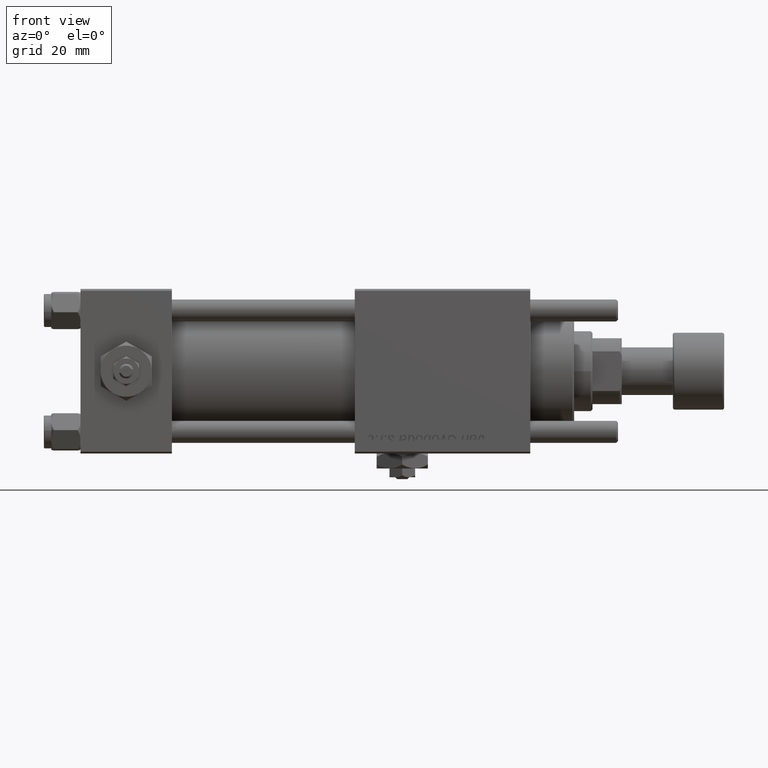
[diagram: clean part render]
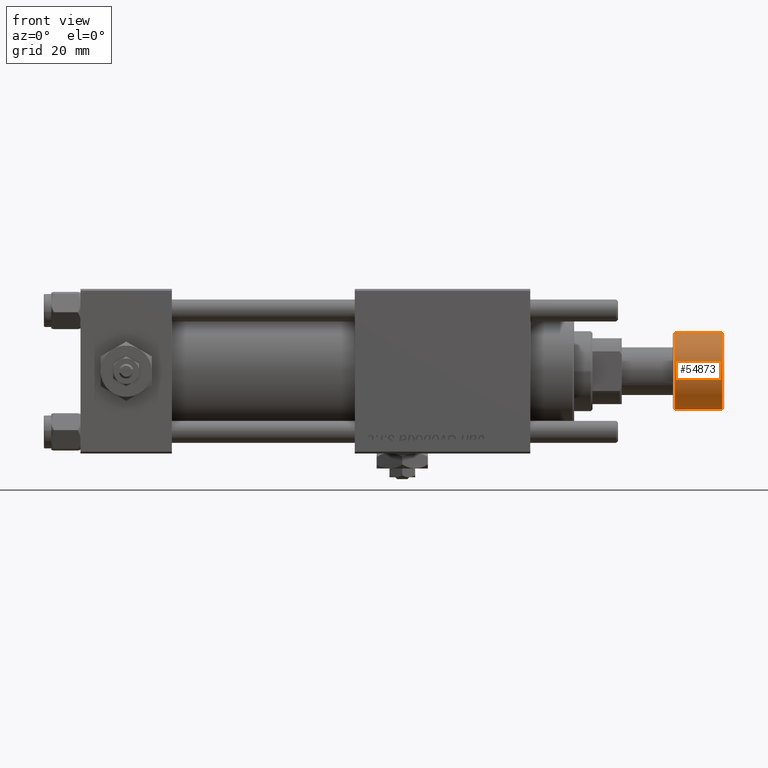
[diagram: same view with one face highlighted and labeled with its STEP entity id]
A machine part, front view. The second image highlights one B-rep face of the part: STEP entity #54873.
In plain terms, the highlighted cylindrical surface (partial cylindrical patch) has radius 10.5 mm, axis along (1, 0, 0).
Its self-contained STEP definition (entity closure, byte-faithful):
#799 = VERTEX_POINT ( 'NONE', #57303 ) ;
#1208 = DIRECTION ( 'NONE',  ( -0.000000000000000000, -0.000000000000000000, -1.000000000000000000 ) ) ;
#3581 = EDGE_CURVE ( 'NONE', #799, #38493, #22550, .T. ) ;
#4832 = LINE ( 'NONE', #9624, #47866 ) ;
#5527 = ORIENTED_EDGE ( 'NONE', *, *, #3581, .T. ) ;
#9624 = CARTESIAN_POINT ( 'NONE',  ( -10.50000000000000000, 1.285879139104720831E-15, -14.00000000000000000 ) ) ;
#10810 = ORIENTED_EDGE ( 'NONE', *, *, #30725, .F. ) ;
#11131 = CIRCLE ( 'NONE', #30212, 10.50000000000000000 ) ;
#11679 = CARTESIAN_POINT ( 'NONE',  ( -10.50000000000000000, 1.285879139104720831E-15, -0.5000000000000004441 ) ) ;
#13781 = CARTESIAN_POINT ( 'NONE',  ( 0.000000000000000000, 0.000000000000000000, -13.50000000000000000 ) ) ;
#13804 = DIRECTION ( 'NONE',  ( 0.000000000000000000, 0.000000000000000000, 1.000000000000000000 ) ) ;
#16785 = CARTESIAN_POINT ( 'NONE',  ( 10.50000000000000000, 0.000000000000000000, -13.50000000000000000 ) ) ;
#19172 = DIRECTION ( 'NONE',  ( 0.000000000000000000, 0.000000000000000000, 1.000000000000000000 ) ) ;
#19597 = FACE_OUTER_BOUND ( 'NONE', #24294, .T. ) ;
#22550 = CIRCLE ( 'NONE', #44479, 10.50000000000000000 ) ;
#23301 = VERTEX_POINT ( 'NONE', #16785 ) ;
#24091 = VECTOR ( 'NONE', #26730, 1000.000000000000000 ) ;
#24294 = EDGE_LOOP ( 'NONE', ( #10810, #52983, #31285, #5527 ) ) ;
#26730 = DIRECTION ( 'NONE',  ( 0.000000000000000000, 0.000000000000000000, 1.000000000000000000 ) ) ;
#30212 = AXIS2_PLACEMENT_3D ( 'NONE', #13781, #19172, #37412 ) ;
#30725 = EDGE_CURVE ( 'NONE', #49122, #38493, #4832, .T. ) ;
#30939 = CARTESIAN_POINT ( 'NONE',  ( -10.50000000000000000, 1.285879139104720831E-15, -13.50000000000000000 ) ) ;
#31285 = ORIENTED_EDGE ( 'NONE', *, *, #37145, .T. ) ;
#33170 = AXIS2_PLACEMENT_3D ( 'NONE', #47995, #43207, #51894 ) ;
#33950 = CYLINDRICAL_SURFACE ( 'NONE', #33170, 10.50000000000000000 ) ;
#37145 = EDGE_CURVE ( 'NONE', #23301, #799, #53628, .T. ) ;
#37412 = DIRECTION ( 'NONE',  ( 1.000000000000000000, 0.000000000000000000, 0.000000000000000000 ) ) ;
#38493 = VERTEX_POINT ( 'NONE', #11679 ) ;
#43207 = DIRECTION ( 'NONE',  ( 0.000000000000000000, 0.000000000000000000, 1.000000000000000000 ) ) ;
#44479 = AXIS2_PLACEMENT_3D ( 'NONE', #51172, #1208, #50283 ) ;
#47866 = VECTOR ( 'NONE', #13804, 1000.000000000000000 ) ;
#47995 = CARTESIAN_POINT ( 'NONE',  ( 0.000000000000000000, 0.000000000000000000, -14.00000000000000000 ) ) ;
#48217 = EDGE_CURVE ( 'NONE', #49122, #23301, #11131, .T. ) ;
#49122 = VERTEX_POINT ( 'NONE', #30939 ) ;
#49128 = CARTESIAN_POINT ( 'NONE',  ( 10.50000000000000000, 0.000000000000000000, -14.00000000000000000 ) ) ;
#50283 = DIRECTION ( 'NONE',  ( 1.000000000000000000, 0.000000000000000000, 0.000000000000000000 ) ) ;
#51172 = CARTESIAN_POINT ( 'NONE',  ( 0.000000000000000000, 0.000000000000000000, -0.5000000000000004441 ) ) ;
#51894 = DIRECTION ( 'NONE',  ( 1.000000000000000000, 0.000000000000000000, 0.000000000000000000 ) ) ;
#52983 = ORIENTED_EDGE ( 'NONE', *, *, #48217, .T. ) ;
#53628 = LINE ( 'NONE', #49128, #24091 ) ;
#54873 = ADVANCED_FACE ( 'NONE', ( #19597 ), #33950, .T. ) ;
#57303 = CARTESIAN_POINT ( 'NONE',  ( 10.50000000000000000, 0.000000000000000000, -0.5000000000000004441 ) ) ;